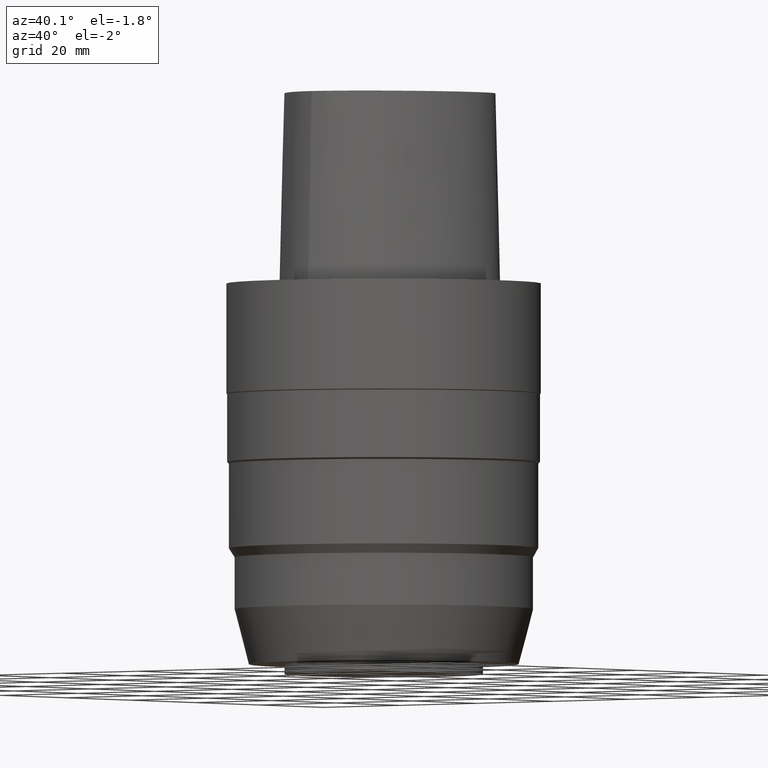
[diagram: clean part render]
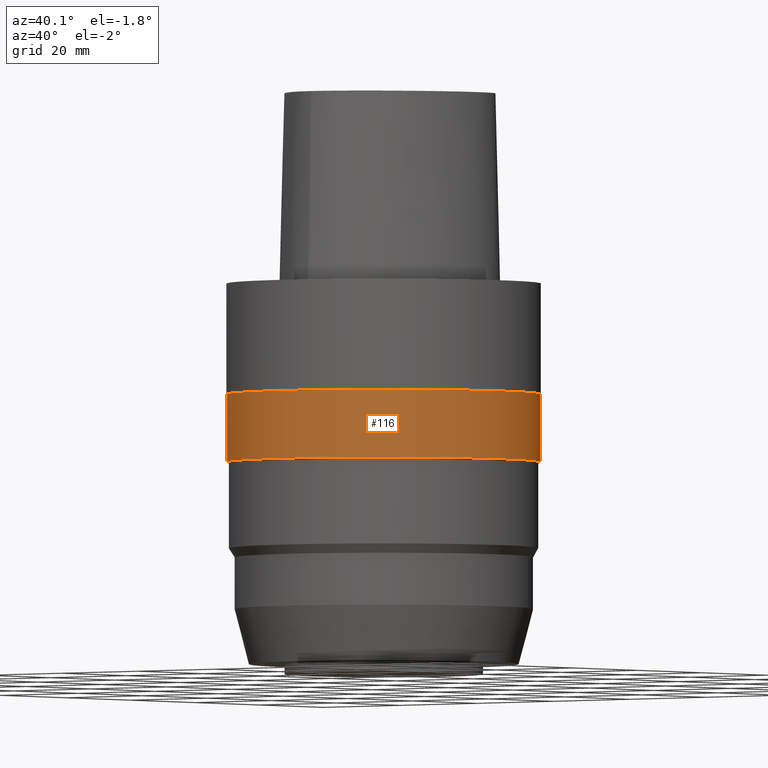
[diagram: same view with one face highlighted and labeled with its STEP entity id]
A machine part, auxiliary view. The second image highlights one B-rep face of the part: STEP entity #116.
In plain terms, the highlighted cylindrical surface (bore or boss wall) has radius 31.35 mm, axis along (0, 0, -1).
Its self-contained STEP definition (entity closure, byte-faithful):
#93=EDGE_CURVE('Unnamed[1]',#216,#216,#217,.T.);
#100=EDGE_CURVE('Unnamed[1]',#226,#226,#227,.T.);
#116=ADVANCED_FACE('Unnamed[1]',(#251,#252),#253,.T.);
#216=VERTEX_POINT('',#456);
#217=CIRCLE('',#457,31.3499999999998);
#226=VERTEX_POINT('',#551);
#227=CIRCLE('',#552,31.3500000000002);
#251=FACE_BOUND('',#582,.T.);
#252=FACE_BOUND('',#583,.T.);
#253=CYLINDRICAL_SURFACE('',#584,31.35);
#456=CARTESIAN_POINT('',(1.35629633005572E-015,31.3499999999998,-22.1500000000004));
#457=AXIS2_PLACEMENT_3D('',#721,#722,#723);
#551=CARTESIAN_POINT('',(2.18599453647802E-015,31.3500000000002,-35.6999999999998));
#552=AXIS2_PLACEMENT_3D('',#729,#730,#731);
#582=EDGE_LOOP('',(#759));
#583=EDGE_LOOP('',(#760));
#584=AXIS2_PLACEMENT_3D('',#761,#762,#763);
#721=CARTESIAN_POINT('',(1.35629633005572E-015,2.71259266011143E-015,-22.1500000000004));
#722=DIRECTION('',(6.12323399573677E-017,1.22464679914735E-016,-1.0));
#723=DIRECTION('',(-1.23259516440783E-032,1.0,1.22464679914735E-016));
#729=CARTESIAN_POINT('',(2.18599453647802E-015,4.37198907295603E-015,-35.6999999999999));
#730=DIRECTION('',(6.12323399573677E-017,1.22464679914735E-016,-1.0));
#731=DIRECTION('',(-1.23259516440783E-032,1.0,1.22464679914735E-016));
#759=ORIENTED_EDGE('',*,*,#100,.F.);
#760=ORIENTED_EDGE('',*,*,#93,.T.);
#761=CARTESIAN_POINT('',(1.77114543326687E-015,3.54229086653373E-015,-28.9250000000001));
#762=DIRECTION('',(6.12323399573677E-017,1.22464679914735E-016,-1.0));
#763=DIRECTION('',(-1.23259516440783E-032,1.0,1.22464679914735E-016));